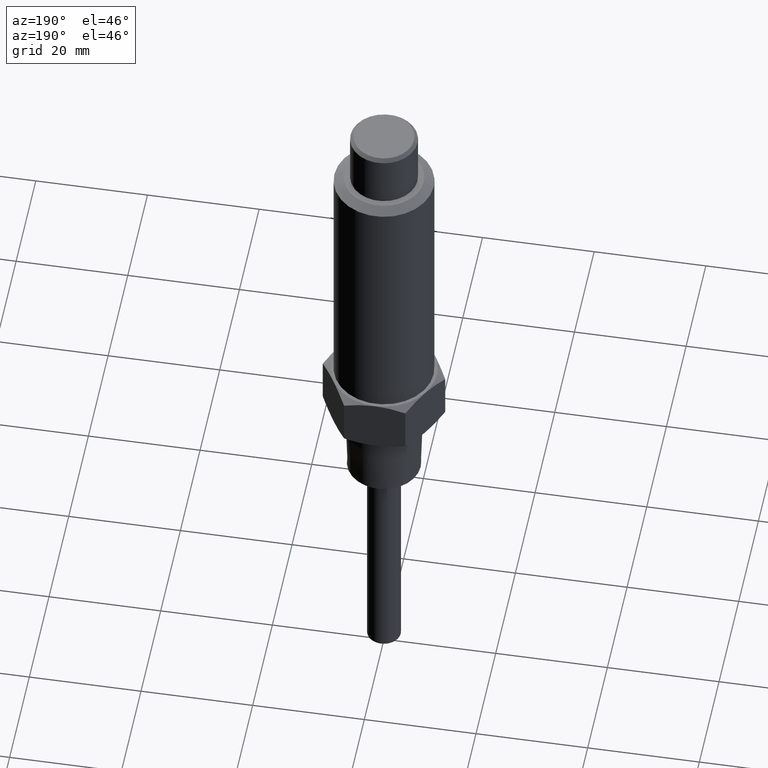
[diagram: clean part render]
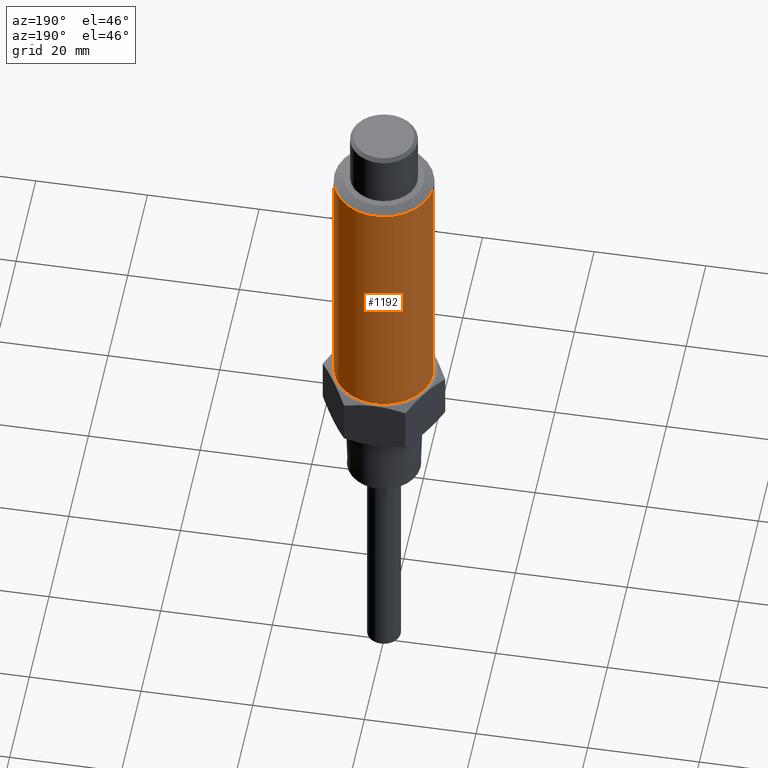
[diagram: same view with one face highlighted and labeled with its STEP entity id]
A machine part, auxiliary view. The second image highlights one B-rep face of the part: STEP entity #1192.
In plain terms, the highlighted cylindrical surface (partial cylindrical patch) has radius 8.9 mm, axis along (0, 0, 1).
Its self-contained STEP definition (entity closure, byte-faithful):
#3 = VECTOR ( 'NONE', #823, 39.37007874015748143 ) ;
#104 = VECTOR ( 'NONE', #1038, 39.37007874015748143 ) ;
#131 = FACE_OUTER_BOUND ( 'NONE', #1107, .T. ) ;
#156 = AXIS2_PLACEMENT_3D ( 'NONE', #1151, #679, #235 ) ;
#165 = EDGE_CURVE ( 'NONE', #1097, #448, #356, .T. ) ;
#192 = EDGE_CURVE ( 'NONE', #448, #379, #606, .T. ) ;
#235 = DIRECTION ( 'NONE',  ( 1.000000000000000000, 0.000000000000000000, 0.000000000000000000 ) ) ;
#308 = CARTESIAN_POINT ( 'NONE',  ( -0.3503937007874015630, -1.124134610482304572E-15, -2.314960629921259727 ) ) ;
#356 = LINE ( 'NONE', #1517, #3 ) ;
#379 = VERTEX_POINT ( 'NONE', #1419 ) ;
#384 = EDGE_CURVE ( 'NONE', #379, #643, #1052, .T. ) ;
#427 = DIRECTION ( 'NONE',  ( 1.000000000000000000, 0.000000000000000000, 0.000000000000000000 ) ) ;
#448 = VERTEX_POINT ( 'NONE', #626 ) ;
#532 = ORIENTED_EDGE ( 'NONE', *, *, #165, .T. ) ;
#542 = CARTESIAN_POINT ( 'NONE',  ( 0.000000000000000000, 0.000000000000000000, -2.314960629921259727 ) ) ;
#606 = CIRCLE ( 'NONE', #1452, 0.3503937007874015630 ) ;
#624 = ORIENTED_EDGE ( 'NONE', *, *, #384, .T. ) ;
#626 = CARTESIAN_POINT ( 'NONE',  ( -0.3503937007874015630, -1.210879168204456159E-15, -0.4409448818897638289 ) ) ;
#643 = VERTEX_POINT ( 'NONE', #1399 ) ;
#679 = DIRECTION ( 'NONE',  ( 0.000000000000000000, 0.000000000000000000, 1.000000000000000000 ) ) ;
#823 = DIRECTION ( 'NONE',  ( 0.000000000000000000, 0.000000000000000000, 1.000000000000000000 ) ) ;
#838 = CIRCLE ( 'NONE', #1110, 0.3503937007874015630 ) ;
#843 = ORIENTED_EDGE ( 'NONE', *, *, #192, .T. ) ;
#943 = ORIENTED_EDGE ( 'NONE', *, *, #1022, .T. ) ;
#955 = DIRECTION ( 'NONE',  ( 1.000000000000000000, -8.881784197001252323E-16, 0.000000000000000000 ) ) ;
#1022 = EDGE_CURVE ( 'NONE', #643, #1097, #838, .T. ) ;
#1038 = DIRECTION ( 'NONE',  ( -0.000000000000000000, -0.000000000000000000, -1.000000000000000000 ) ) ;
#1052 = LINE ( 'NONE', #1303, #104 ) ;
#1055 = CYLINDRICAL_SURFACE ( 'NONE', #156, 0.3503937007874015630 ) ;
#1097 = VERTEX_POINT ( 'NONE', #308 ) ;
#1107 = EDGE_LOOP ( 'NONE', ( #624, #943, #532, #843 ) ) ;
#1110 = AXIS2_PLACEMENT_3D ( 'NONE', #542, #1495, #427 ) ;
#1151 = CARTESIAN_POINT ( 'NONE',  ( 0.000000000000000000, 0.000000000000000000, -2.220472440944881942 ) ) ;
#1192 = ADVANCED_FACE ( 'NONE', ( #131 ), #1055, .T. ) ;
#1199 = DIRECTION ( 'NONE',  ( -0.000000000000000000, -0.000000000000000000, -1.000000000000000000 ) ) ;
#1213 = CARTESIAN_POINT ( 'NONE',  ( 0.000000000000000000, 0.000000000000000000, -0.4409448818897638289 ) ) ;
#1303 = CARTESIAN_POINT ( 'NONE',  ( 0.3503937007874015630, 0.000000000000000000, -2.220472440944881942 ) ) ;
#1399 = CARTESIAN_POINT ( 'NONE',  ( 0.3503937007874015630, -4.291085241106867595E-17, -2.314960629921259727 ) ) ;
#1419 = CARTESIAN_POINT ( 'NONE',  ( 0.3503937007874015075, 6.099103475335243413E-16, -0.4409448818897638289 ) ) ;
#1452 = AXIS2_PLACEMENT_3D ( 'NONE', #1213, #1199, #955 ) ;
#1495 = DIRECTION ( 'NONE',  ( 0.000000000000000000, 0.000000000000000000, 1.000000000000000000 ) ) ;
#1517 = CARTESIAN_POINT ( 'NONE',  ( -0.3503937007874015630, 4.291085241106867595E-17, -2.220472440944881942 ) ) ;